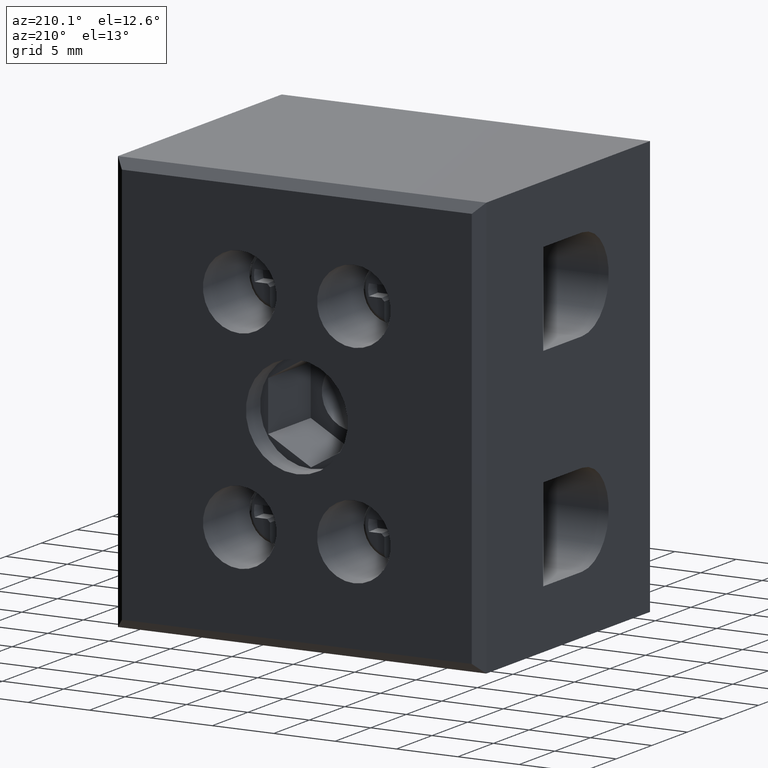
[diagram: clean part render]
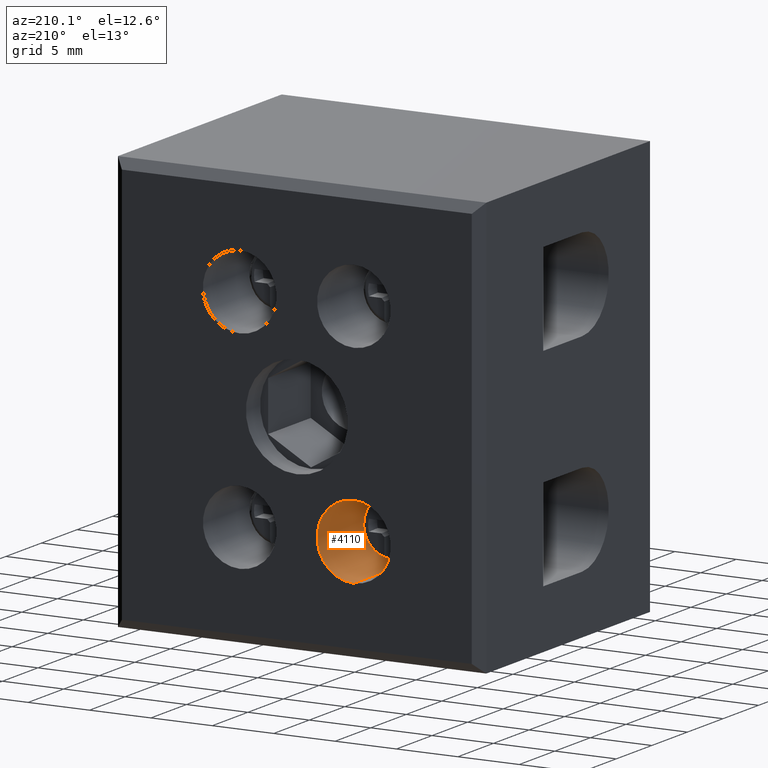
[diagram: same view with one face highlighted and labeled with its STEP entity id]
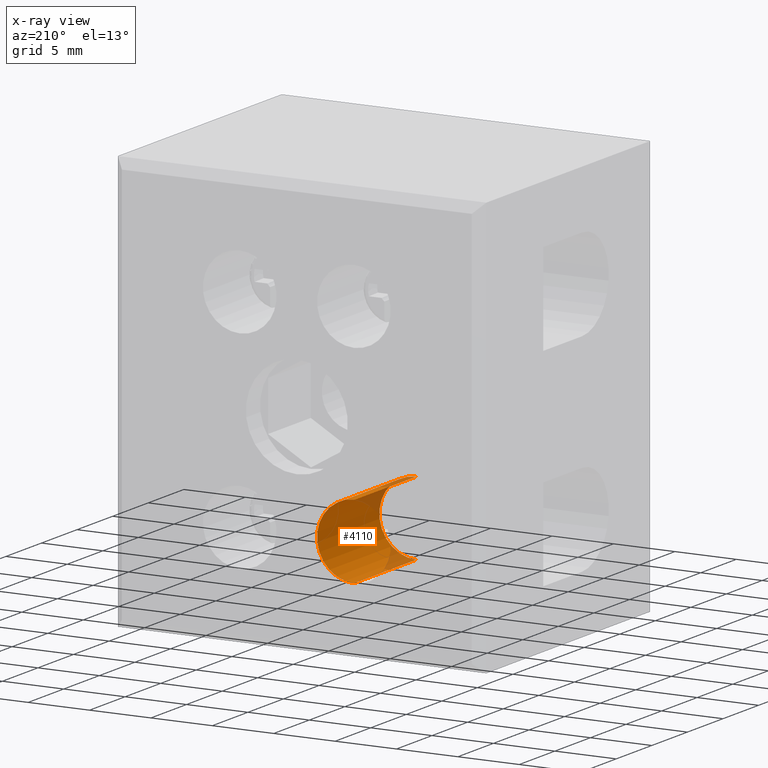
[diagram: x-ray of the same camera — body ghosted, the highlighted face saturated]
A machine part, auxiliary view. The second image highlights one B-rep face of the part: STEP entity #4110.
The next image is the same camera in x-ray: the body ghosted, the highlighted face saturated — about 13% of this face is hidden behind the body in this view.
In plain terms, the highlighted cylindrical surface (partial cylindrical patch) has radius 3 mm, axis along (0, 1, 0).
Its self-contained STEP definition (entity closure, byte-faithful):
#168 = CARTESIAN_POINT ( 'NONE',  ( 10.34999999999999300, 24.50000000000000000, -28.50000000000000400 ) ) ;
#205 = CARTESIAN_POINT ( 'NONE',  ( 10.34999999999999300, 24.50000000000000000, -22.50000000000000700 ) ) ;
#228 = CARTESIAN_POINT ( 'NONE',  ( 10.34999999999999300, 15.75000000000000000, -28.50000000000000400 ) ) ;
#241 = CARTESIAN_POINT ( 'NONE',  ( 10.34999999999999300, 15.75000000000000000, -22.50000000000000700 ) ) ;
#432 = DIRECTION ( 'NONE',  ( 0.0000000000000000000, 1.000000000000000000, 0.0000000000000000000 ) ) ;
#437 = CARTESIAN_POINT ( 'NONE',  ( 10.34999999999999300, 15.50000000000000200, -25.50000000000000400 ) ) ;
#443 = CYLINDRICAL_SURFACE ( 'NONE', #7987, 2.999999999999999100 ) ;
#444 = FACE_OUTER_BOUND ( 'NONE', #4068, .T. ) ;
#451 = DIRECTION ( 'NONE',  ( 0.0000000000000000000, 0.0000000000000000000, 1.000000000000000000 ) ) ;
#1760 = ORIENTED_EDGE ( 'NONE', *, *, #4560, .F. ) ;
#1797 = ORIENTED_EDGE ( 'NONE', *, *, #5033, .T. ) ;
#1826 = ORIENTED_EDGE ( 'NONE', *, *, #4900, .F. ) ;
#1828 = ORIENTED_EDGE ( 'NONE', *, *, #4601, .T. ) ;
#2832 = DIRECTION ( 'NONE',  ( 0.0000000000000000000, 1.000000000000000000, 0.0000000000000000000 ) ) ;
#2844 = LINE ( 'NONE', #2847, #8177 ) ;
#2847 = CARTESIAN_POINT ( 'NONE',  ( 10.34999999999999300, 15.50000000000000200, -28.50000000000000400 ) ) ;
#2949 = CARTESIAN_POINT ( 'NONE',  ( 10.34999999999999300, 15.50000000000000200, -22.50000000000000700 ) ) ;
#2977 = LINE ( 'NONE', #2949, #8222 ) ;
#2987 = DIRECTION ( 'NONE',  ( 0.0000000000000000000, 1.000000000000000000, 0.0000000000000000000 ) ) ;
#3639 = VERTEX_POINT ( 'NONE', #205 ) ;
#3646 = VERTEX_POINT ( 'NONE', #168 ) ;
#3684 = VERTEX_POINT ( 'NONE', #241 ) ;
#3690 = VERTEX_POINT ( 'NONE', #228 ) ;
#4068 = EDGE_LOOP ( 'NONE', ( #1760, #1826, #1828, #1797 ) ) ;
#4110 = ADVANCED_FACE ( 'NONE', ( #444 ), #443, .F. ) ;
#4560 = EDGE_CURVE ( 'NONE', #3690, #3646, #2844, .T. ) ;
#4601 = EDGE_CURVE ( 'NONE', #3684, #3639, #2977, .T. ) ;
#4900 = EDGE_CURVE ( 'NONE', #3684, #3690, #8816, .T. ) ;
#5033 = EDGE_CURVE ( 'NONE', #3639, #3646, #9145, .T. ) ;
#5585 = DIRECTION ( 'NONE',  ( 0.0000000000000000000, 1.000000000000000000, 0.0000000000000000000 ) ) ;
#5587 = CARTESIAN_POINT ( 'NONE',  ( 10.34999999999999300, 15.75000000000000000, -25.50000000000000400 ) ) ;
#5620 = DIRECTION ( 'NONE',  ( 0.0000000000000000000, 0.0000000000000000000, 1.000000000000000000 ) ) ;
#6355 = DIRECTION ( 'NONE',  ( 0.0000000000000000000, 0.0000000000000000000, 1.000000000000000000 ) ) ;
#6369 = CARTESIAN_POINT ( 'NONE',  ( 10.34999999999999300, 24.50000000000000000, -25.50000000000000400 ) ) ;
#6383 = DIRECTION ( 'NONE',  ( 0.0000000000000000000, 1.000000000000000000, 0.0000000000000000000 ) ) ;
#7987 = AXIS2_PLACEMENT_3D ( 'NONE', #437, #432, #451 ) ;
#8177 = VECTOR ( 'NONE', #2832, 1000.000000000000000 ) ;
#8222 = VECTOR ( 'NONE', #2987, 1000.000000000000000 ) ;
#8810 = AXIS2_PLACEMENT_3D ( 'NONE', #5587, #5585, #5620 ) ;
#8816 = CIRCLE ( 'NONE', #8810, 2.999999999999999100 ) ;
#9118 = AXIS2_PLACEMENT_3D ( 'NONE', #6369, #6383, #6355 ) ;
#9145 = CIRCLE ( 'NONE', #9118, 2.999999999999999100 ) ;